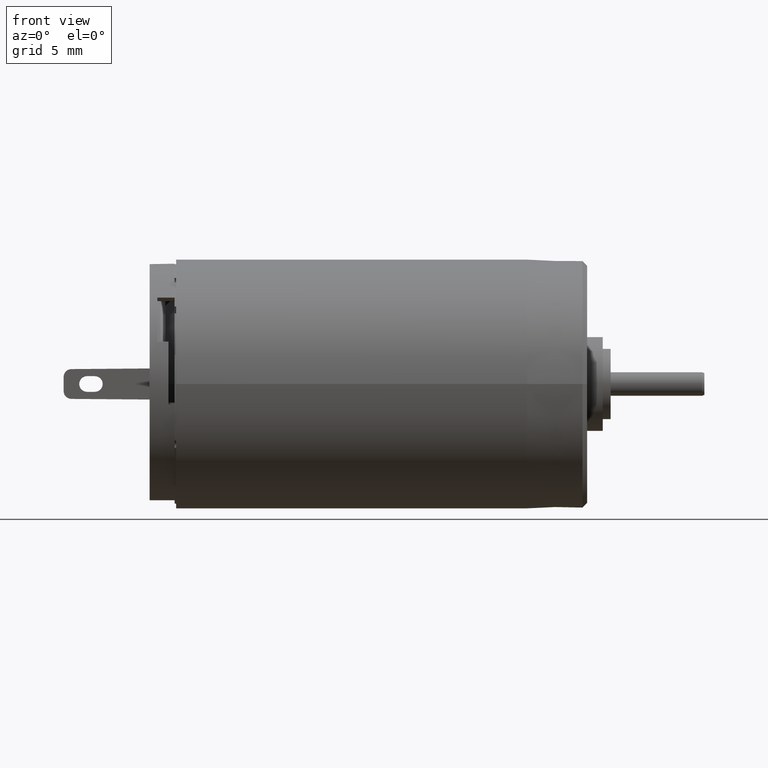
[diagram: clean part render]
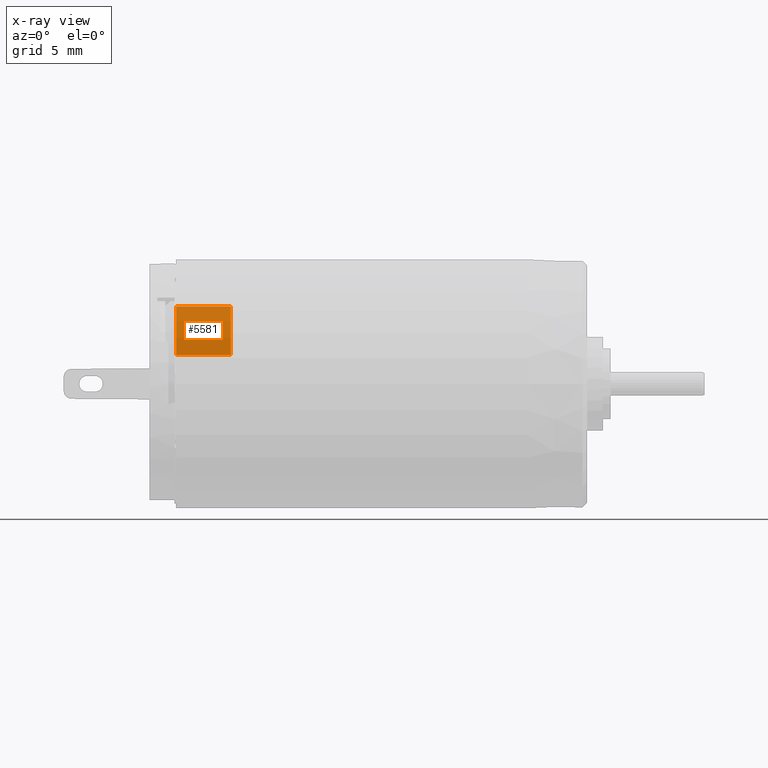
[diagram: x-ray — body ghosted, one internal face saturated and labeled with its STEP entity id]
A machine part, front view, then the same camera in x-ray: the body is ghosted and one INTERNAL B-rep face — a face not visible from any outside direction — is saturated and labeled: STEP entity #5581.
In plain terms, the highlighted cylindrical surface (partial cylindrical patch) has radius 7.675 mm, axis along (-1, 0, 0).
Its self-contained STEP definition (entity closure, byte-faithful):
#321=DIRECTION('',(-9.999998605787E-1,4.700816869686E-4,-2.405529525462E-4));
#322=VECTOR('',#321,3.500000487975E0);
#323=CARTESIAN_POINT('',(-2.28E1,-7.453316481743E0,1.846335314440E0));
#324=LINE('',#323,#322);
#408=CARTESIAN_POINT('',(-2.63E1,-3.707706333872E-3,0.E0));
#409=DIRECTION('',(-1.E0,0.E0,0.E0));
#410=DIRECTION('',(0.E0,-9.706594891961E-1,2.404582209733E-1));
#411=AXIS2_PLACEMENT_3D('',#408,#409,#410);
#2161=DIRECTION('',(-9.999999546346E-1,1.695717474414E-4,-2.489502330006E-4));
#2162=VECTOR('',#2161,3.500000158779E0);
#2163=CARTESIAN_POINT('',(-2.28E1,-5.858909306426E0,4.962080130578E0));
#2164=LINE('',#2163,#2162);
#2165=CARTESIAN_POINT('',(-2.28E1,-3.707706333872E-3,0.E0));
#2166=DIRECTION('',(1.E0,0.E0,0.E0));
#2167=DIRECTION('',(0.E0,-7.628927166243E-1,6.465250984467E-1));
#2168=AXIS2_PLACEMENT_3D('',#2165,#2166,#2167);
#2196=CARTESIAN_POINT('',(-2.63E1,-7.453519285914E0,1.845516845970E0));
#2197=CARTESIAN_POINT('',(-2.63E1,-5.859214015523E0,4.961720554712E0));
#2198=VERTEX_POINT('',#2196);
#2199=VERTEX_POINT('',#2197);
#2450=CARTESIAN_POINT('',(-2.28E1,-5.858909306426E0,4.962080130578E0));
#2451=VERTEX_POINT('',#2450);
#2452=CARTESIAN_POINT('',(-2.28E1,-7.453316481743E0,1.846335314440E0));
#2453=VERTEX_POINT('',#2452);
#5569=CARTESIAN_POINT('',(-2.273E1,-3.707706333872E-3,0.E0));
#5570=DIRECTION('',(-1.E0,0.E0,0.E0));
#5571=DIRECTION('',(0.E0,-1.E0,0.E0));
#5572=AXIS2_PLACEMENT_3D('',#5569,#5570,#5571);
#5573=CYLINDRICAL_SURFACE('',#5572,7.675E0);
#5574=ORIENTED_EDGE('',*,*,#3285,.F.);
#5575=ORIENTED_EDGE('',*,*,#3211,.F.);
#5577=ORIENTED_EDGE('',*,*,#5576,.F.);
#5578=ORIENTED_EDGE('',*,*,#3239,.T.);
#5579=EDGE_LOOP('',(#5574,#5575,#5577,#5578));
#5580=FACE_OUTER_BOUND('',#5579,.F.);
#5581=ADVANCED_FACE('',(#5580),#5573,.F.);
#412=CIRCLE('',#411,7.675E0);
#2169=CIRCLE('',#2168,7.675E0);
#3211=EDGE_CURVE('',#2453,#2198,#324,.T.);
#3239=EDGE_CURVE('',#2451,#2199,#2164,.T.);
#3285=EDGE_CURVE('',#2198,#2199,#412,.T.);
#5576=EDGE_CURVE('',#2451,#2453,#2169,.T.);